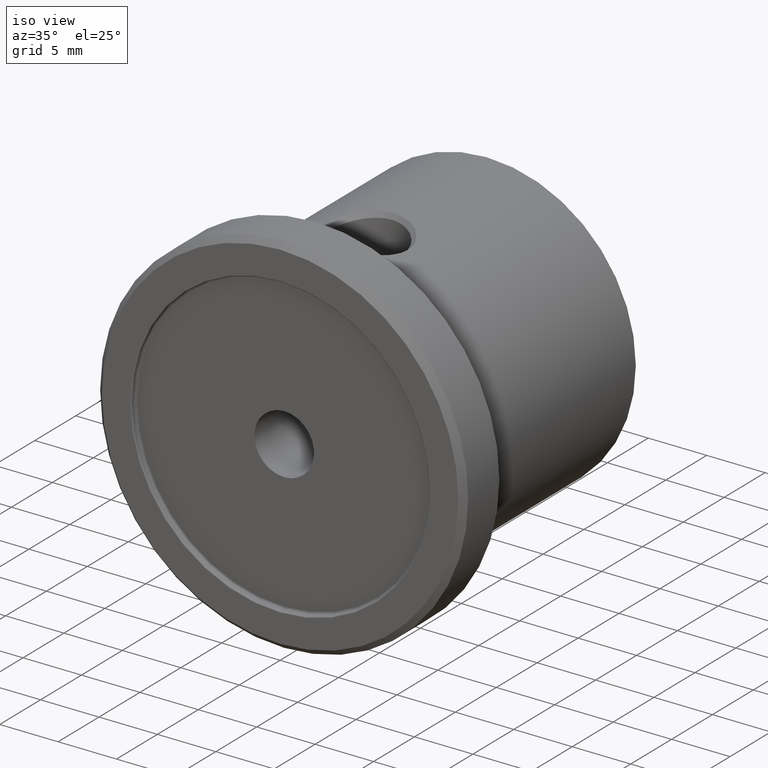
[diagram: clean part render]
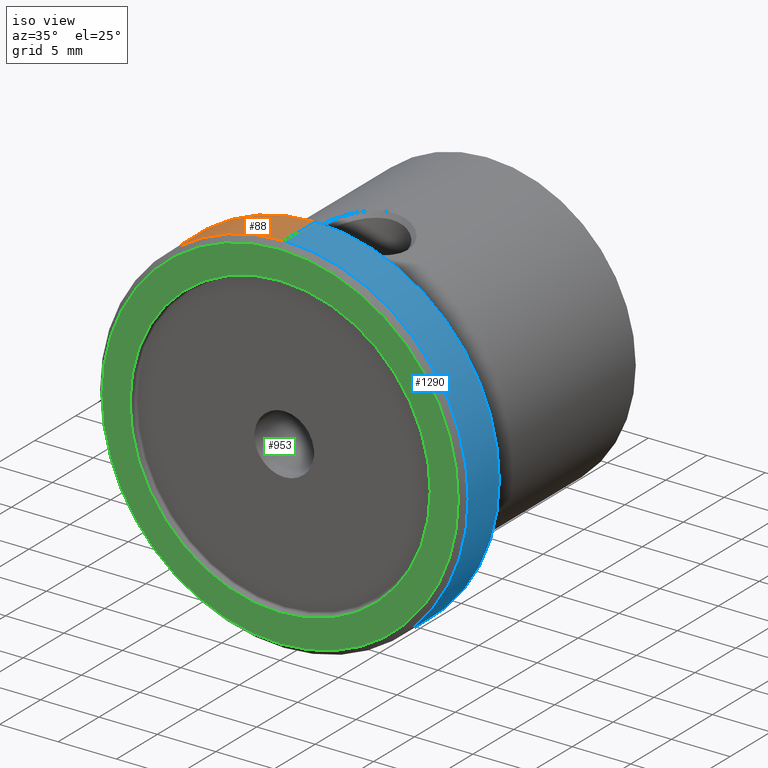
[diagram: same view with three faces highlighted in distinct colors, each labeled with its STEP entity id]
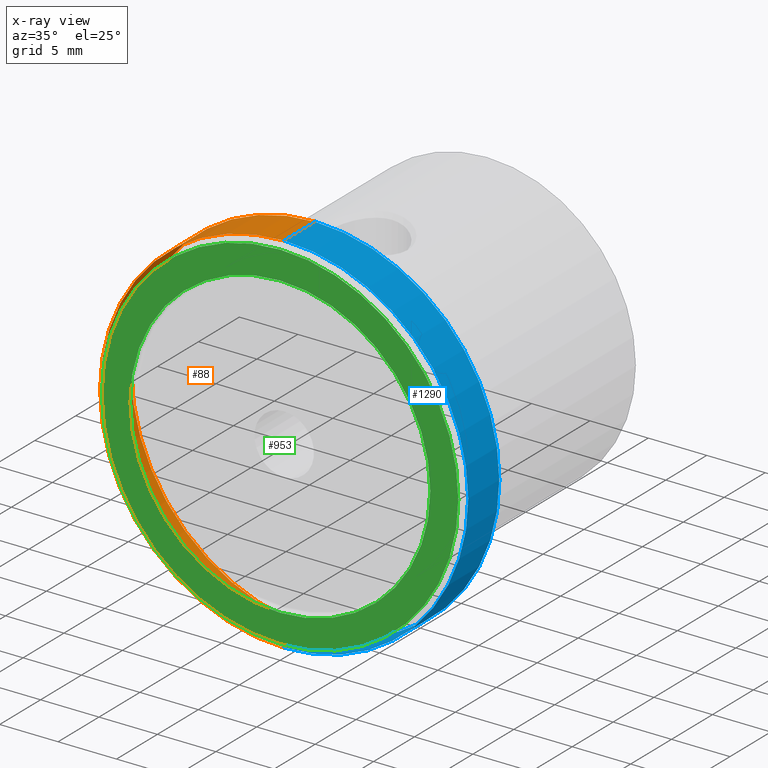
[diagram: x-ray of the same camera — body ghosted, the three highlighted faces saturated]
A machine part, iso view with three faces highlighted in distinct colors.
The next image is the same camera in x-ray (body ghosted, the three faces saturated) — at least one of them is partly hidden behind the body in this view.
Their STEP definitions:

[orange] entity #88 — the highlighted cylindrical surface (partial cylindrical patch) has radius 15.75 mm, axis along (-0, -1, -0).
#9 = DIRECTION ( 'NONE',  ( -0.0000000000000000000, -1.000000000000000000, -0.0000000000000000000 ) ) ;
#13 = CIRCLE ( 'NONE', #576, 15.75000000000000000 ) ;
#71 = VERTEX_POINT ( 'NONE', #764 ) ;
#88 = ADVANCED_FACE ( 'NONE', ( #342 ), #1148, .T. ) ;
#111 = CARTESIAN_POINT ( 'NONE',  ( 0.0000000000000000000, 4.299999999999994500, 0.0000000000000000000 ) ) ;
#120 = CARTESIAN_POINT ( 'NONE',  ( 1.928818708657081300E-015, -7.650118203309686400, 15.75000000000000000 ) ) ;
#136 = VECTOR ( 'NONE', #161, 1000.000000000000000 ) ;
#161 = DIRECTION ( 'NONE',  ( -0.0000000000000000000, -1.000000000000000000, -0.0000000000000000000 ) ) ;
#173 = CARTESIAN_POINT ( 'NONE',  ( 0.0000000000000000000, 0.5000000000000004400, 0.0000000000000000000 ) ) ;
#215 = DIRECTION ( 'NONE',  ( -0.0000000000000000000, -1.000000000000000000, -0.0000000000000000000 ) ) ;
#249 = CARTESIAN_POINT ( 'NONE',  ( 0.0000000000000000000, 0.5000000000000004400, 15.75000000000000000 ) ) ;
#336 = DIRECTION ( 'NONE',  ( -0.0000000000000000000, -1.000000000000000000, -0.0000000000000000000 ) ) ;
#342 = FACE_OUTER_BOUND ( 'NONE', #1326, .T. ) ;
#345 = LINE ( 'NONE', #804, #136 ) ;
#392 = LINE ( 'NONE', #120, #1237 ) ;
#434 = VERTEX_POINT ( 'NONE', #805 ) ;
#558 = EDGE_CURVE ( 'NONE', #1012, #71, #13, .T. ) ;
#576 = AXIS2_PLACEMENT_3D ( 'NONE', #173, #1027, #1032 ) ;
#653 = ORIENTED_EDGE ( 'NONE', *, *, #1147, .T. ) ;
#747 = VERTEX_POINT ( 'NONE', #1320 ) ;
#748 = ORIENTED_EDGE ( 'NONE', *, *, #558, .F. ) ;
#764 = CARTESIAN_POINT ( 'NONE',  ( 1.928818708657081300E-015, 0.5000000000000004400, -15.75000000000000000 ) ) ;
#796 = ORIENTED_EDGE ( 'NONE', *, *, #1382, .F. ) ;
#804 = CARTESIAN_POINT ( 'NONE',  ( 0.0000000000000000000, -7.650118203309686400, -15.75000000000000000 ) ) ;
#805 = CARTESIAN_POINT ( 'NONE',  ( 1.928818708657081300E-015, 4.299999999999994500, 15.75000000000000000 ) ) ;
#883 = CARTESIAN_POINT ( 'NONE',  ( 0.0000000000000000000, -7.650118203309686400, 0.0000000000000000000 ) ) ;
#936 = AXIS2_PLACEMENT_3D ( 'NONE', #883, #336, #1086 ) ;
#1012 = VERTEX_POINT ( 'NONE', #249 ) ;
#1027 = DIRECTION ( 'NONE',  ( -0.0000000000000000000, -1.000000000000000000, -0.0000000000000000000 ) ) ;
#1032 = DIRECTION ( 'NONE',  ( 0.0000000000000000000, 0.0000000000000000000, -1.000000000000000000 ) ) ;
#1081 = DIRECTION ( 'NONE',  ( 0.0000000000000000000, 0.0000000000000000000, -1.000000000000000000 ) ) ;
#1086 = DIRECTION ( 'NONE',  ( 0.0000000000000000000, 0.0000000000000000000, -1.000000000000000000 ) ) ;
#1099 = ORIENTED_EDGE ( 'NONE', *, *, #1327, .T. ) ;
#1129 = CIRCLE ( 'NONE', #1334, 15.75000000000000000 ) ;
#1147 = EDGE_CURVE ( 'NONE', #747, #71, #345, .T. ) ;
#1148 = CYLINDRICAL_SURFACE ( 'NONE', #936, 15.75000000000000000 ) ;
#1237 = VECTOR ( 'NONE', #9, 1000.000000000000000 ) ;
#1320 = CARTESIAN_POINT ( 'NONE',  ( 0.0000000000000000000, 4.299999999999994500, -15.75000000000000000 ) ) ;
#1326 = EDGE_LOOP ( 'NONE', ( #796, #1099, #653, #748 ) ) ;
#1327 = EDGE_CURVE ( 'NONE', #434, #747, #1129, .T. ) ;
#1334 = AXIS2_PLACEMENT_3D ( 'NONE', #111, #215, #1081 ) ;
#1382 = EDGE_CURVE ( 'NONE', #434, #1012, #392, .T. ) ;

[blue] entity #1290 — the highlighted cylindrical surface (partial cylindrical patch) has radius 15.75 mm, axis along (-0, -1, -0).
#9 = DIRECTION ( 'NONE',  ( -0.0000000000000000000, -1.000000000000000000, -0.0000000000000000000 ) ) ;
#71 = VERTEX_POINT ( 'NONE', #764 ) ;
#105 = DIRECTION ( 'NONE',  ( -0.0000000000000000000, -1.000000000000000000, -0.0000000000000000000 ) ) ;
#120 = CARTESIAN_POINT ( 'NONE',  ( 1.928818708657081300E-015, -7.650118203309686400, 15.75000000000000000 ) ) ;
#136 = VECTOR ( 'NONE', #161, 1000.000000000000000 ) ;
#151 = ORIENTED_EDGE ( 'NONE', *, *, #481, .T. ) ;
#152 = DIRECTION ( 'NONE',  ( -0.0000000000000000000, -1.000000000000000000, -0.0000000000000000000 ) ) ;
#161 = DIRECTION ( 'NONE',  ( -0.0000000000000000000, -1.000000000000000000, -0.0000000000000000000 ) ) ;
#163 = DIRECTION ( 'NONE',  ( 0.0000000000000000000, 0.0000000000000000000, -1.000000000000000000 ) ) ;
#171 = AXIS2_PLACEMENT_3D ( 'NONE', #743, #105, #1192 ) ;
#204 = ORIENTED_EDGE ( 'NONE', *, *, #1382, .T. ) ;
#249 = CARTESIAN_POINT ( 'NONE',  ( 0.0000000000000000000, 0.5000000000000004400, 15.75000000000000000 ) ) ;
#320 = CARTESIAN_POINT ( 'NONE',  ( 0.0000000000000000000, 0.5000000000000004400, 0.0000000000000000000 ) ) ;
#345 = LINE ( 'NONE', #804, #136 ) ;
#387 = EDGE_LOOP ( 'NONE', ( #151, #204, #589, #744 ) ) ;
#392 = LINE ( 'NONE', #120, #1237 ) ;
#434 = VERTEX_POINT ( 'NONE', #805 ) ;
#481 = EDGE_CURVE ( 'NONE', #747, #434, #943, .T. ) ;
#521 = DIRECTION ( 'NONE',  ( 0.0000000000000000000, 0.0000000000000000000, -1.000000000000000000 ) ) ;
#589 = ORIENTED_EDGE ( 'NONE', *, *, #1235, .F. ) ;
#743 = CARTESIAN_POINT ( 'NONE',  ( 0.0000000000000000000, -7.650118203309686400, 0.0000000000000000000 ) ) ;
#744 = ORIENTED_EDGE ( 'NONE', *, *, #1147, .F. ) ;
#747 = VERTEX_POINT ( 'NONE', #1320 ) ;
#764 = CARTESIAN_POINT ( 'NONE',  ( 1.928818708657081300E-015, 0.5000000000000004400, -15.75000000000000000 ) ) ;
#771 = AXIS2_PLACEMENT_3D ( 'NONE', #1350, #152, #163 ) ;
#804 = CARTESIAN_POINT ( 'NONE',  ( 0.0000000000000000000, -7.650118203309686400, -15.75000000000000000 ) ) ;
#805 = CARTESIAN_POINT ( 'NONE',  ( 1.928818708657081300E-015, 4.299999999999994500, 15.75000000000000000 ) ) ;
#812 = CYLINDRICAL_SURFACE ( 'NONE', #171, 15.75000000000000000 ) ;
#846 = DIRECTION ( 'NONE',  ( -0.0000000000000000000, -1.000000000000000000, -0.0000000000000000000 ) ) ;
#943 = CIRCLE ( 'NONE', #771, 15.75000000000000000 ) ;
#1012 = VERTEX_POINT ( 'NONE', #249 ) ;
#1091 = CIRCLE ( 'NONE', #1295, 15.75000000000000000 ) ;
#1112 = FACE_OUTER_BOUND ( 'NONE', #387, .T. ) ;
#1147 = EDGE_CURVE ( 'NONE', #747, #71, #345, .T. ) ;
#1192 = DIRECTION ( 'NONE',  ( 0.0000000000000000000, 0.0000000000000000000, -1.000000000000000000 ) ) ;
#1235 = EDGE_CURVE ( 'NONE', #71, #1012, #1091, .T. ) ;
#1237 = VECTOR ( 'NONE', #9, 1000.000000000000000 ) ;
#1290 = ADVANCED_FACE ( 'NONE', ( #1112 ), #812, .T. ) ;
#1295 = AXIS2_PLACEMENT_3D ( 'NONE', #320, #846, #521 ) ;
#1320 = CARTESIAN_POINT ( 'NONE',  ( 0.0000000000000000000, 4.299999999999994500, -15.75000000000000000 ) ) ;
#1350 = CARTESIAN_POINT ( 'NONE',  ( 0.0000000000000000000, 4.299999999999994500, 0.0000000000000000000 ) ) ;
#1382 = EDGE_CURVE ( 'NONE', #434, #1012, #392, .T. ) ;

[green] entity #953 — the highlighted planar face has unit normal (0, 1, 0).
#23 = PLANE ( 'NONE',  #454 ) ;
#31 = DIRECTION ( 'NONE',  ( 0.0000000000000000000, 1.000000000000000000, 0.0000000000000000000 ) ) ;
#40 = EDGE_LOOP ( 'NONE', ( #1402, #331 ) ) ;
#60 = DIRECTION ( 'NONE',  ( -0.0000000000000000000, -1.000000000000000000, -0.0000000000000000000 ) ) ;
#116 = CIRCLE ( 'NONE', #447, 12.84999999999999800 ) ;
#121 = AXIS2_PLACEMENT_3D ( 'NONE', #275, #1280, #932 ) ;
#141 = EDGE_LOOP ( 'NONE', ( #280, #1108 ) ) ;
#268 = CIRCLE ( 'NONE', #431, 15.25000000000000000 ) ;
#275 = CARTESIAN_POINT ( 'NONE',  ( 0.0000000000000000000, -1.734723475976807100E-015, 0.0000000000000000000 ) ) ;
#276 = FACE_BOUND ( 'NONE', #141, .T. ) ;
#280 = ORIENTED_EDGE ( 'NONE', *, *, #325, .T. ) ;
#325 = EDGE_CURVE ( 'NONE', #443, #680, #1292, .T. ) ;
#331 = ORIENTED_EDGE ( 'NONE', *, *, #1095, .T. ) ;
#365 = CARTESIAN_POINT ( 'NONE',  ( 0.0000000000000000000, -9.893344823930228000E-016, 0.0000000000000000000 ) ) ;
#368 = DIRECTION ( 'NONE',  ( 0.0000000000000000000, 0.0000000000000000000, -1.000000000000000000 ) ) ;
#394 = VERTEX_POINT ( 'NONE', #1232 ) ;
#431 = AXIS2_PLACEMENT_3D ( 'NONE', #1357, #60, #368 ) ;
#442 = CARTESIAN_POINT ( 'NONE',  ( 1.573671136904348700E-015, -7.995991022080595200E-016, -12.84999999999999800 ) ) ;
#443 = VERTEX_POINT ( 'NONE', #1341 ) ;
#447 = AXIS2_PLACEMENT_3D ( 'NONE', #533, #758, #1404 ) ;
#454 = AXIS2_PLACEMENT_3D ( 'NONE', #903, #31, #1231 ) ;
#533 = CARTESIAN_POINT ( 'NONE',  ( 0.0000000000000000000, -9.893344823930228000E-016, 0.0000000000000000000 ) ) ;
#540 = EDGE_CURVE ( 'NONE', #394, #855, #685, .T. ) ;
#680 = VERTEX_POINT ( 'NONE', #442 ) ;
#685 = CIRCLE ( 'NONE', #121, 15.25000000000000000 ) ;
#758 = DIRECTION ( 'NONE',  ( 0.0000000000000000000, 1.000000000000000000, 0.0000000000000000000 ) ) ;
#834 = CARTESIAN_POINT ( 'NONE',  ( 1.898202538678397600E-015, -1.734723475976807100E-015, -15.25000000000000000 ) ) ;
#855 = VERTEX_POINT ( 'NONE', #834 ) ;
#869 = AXIS2_PLACEMENT_3D ( 'NONE', #365, #1123, #1107 ) ;
#903 = CARTESIAN_POINT ( 'NONE',  ( -12.75000000000000000, -9.832248198771265800E-016, 0.0000000000000000000 ) ) ;
#910 = FACE_OUTER_BOUND ( 'NONE', #40, .T. ) ;
#932 = DIRECTION ( 'NONE',  ( 0.0000000000000000000, 0.0000000000000000000, -1.000000000000000000 ) ) ;
#953 = ADVANCED_FACE ( 'NONE', ( #276, #910 ), #23, .F. ) ;
#1095 = EDGE_CURVE ( 'NONE', #855, #394, #268, .T. ) ;
#1107 = DIRECTION ( 'NONE',  ( 0.0000000000000000000, 0.0000000000000000000, 1.000000000000000000 ) ) ;
#1108 = ORIENTED_EDGE ( 'NONE', *, *, #1247, .T. ) ;
#1123 = DIRECTION ( 'NONE',  ( 0.0000000000000000000, 1.000000000000000000, 0.0000000000000000000 ) ) ;
#1231 = DIRECTION ( 'NONE',  ( 0.0000000000000000000, -0.0000000000000000000, 1.000000000000000000 ) ) ;
#1232 = CARTESIAN_POINT ( 'NONE',  ( 0.0000000000000000000, -1.734723475976807100E-015, 15.25000000000000000 ) ) ;
#1247 = EDGE_CURVE ( 'NONE', #680, #443, #116, .T. ) ;
#1280 = DIRECTION ( 'NONE',  ( -0.0000000000000000000, -1.000000000000000000, -0.0000000000000000000 ) ) ;
#1292 = CIRCLE ( 'NONE', #869, 12.84999999999999800 ) ;
#1341 = CARTESIAN_POINT ( 'NONE',  ( 0.0000000000000000000, -7.995991022080595200E-016, 12.84999999999999800 ) ) ;
#1357 = CARTESIAN_POINT ( 'NONE',  ( 0.0000000000000000000, -1.734723475976807100E-015, 0.0000000000000000000 ) ) ;
#1402 = ORIENTED_EDGE ( 'NONE', *, *, #540, .T. ) ;
#1404 = DIRECTION ( 'NONE',  ( 0.0000000000000000000, 0.0000000000000000000, 1.000000000000000000 ) ) ;